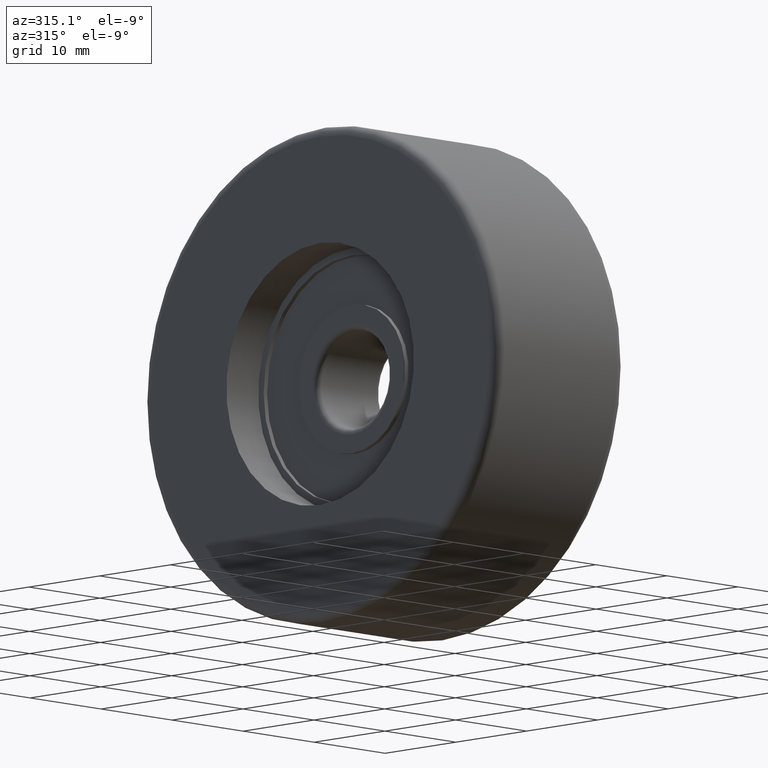
[diagram: clean part render]
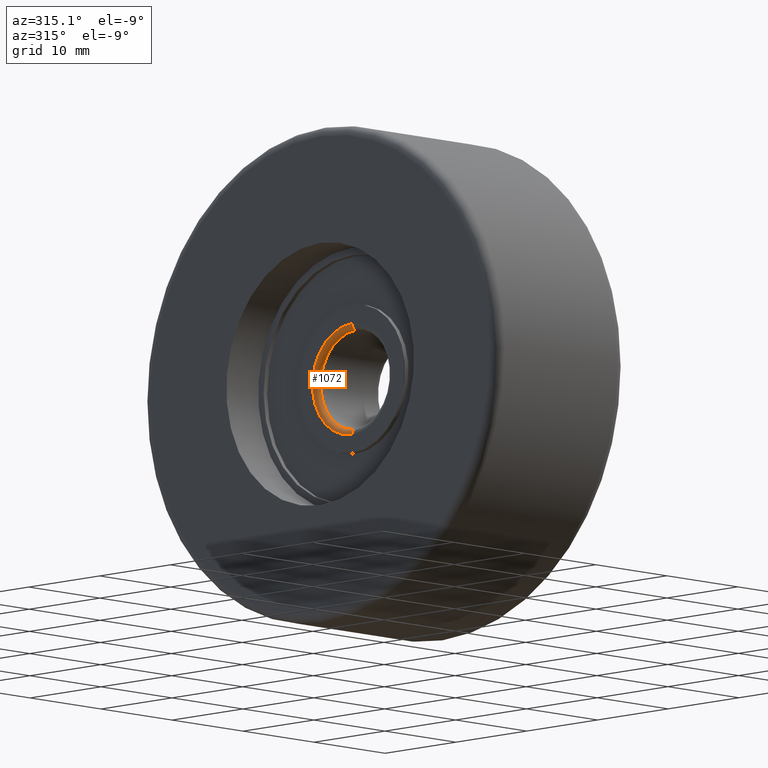
[diagram: same view with one face highlighted and labeled with its STEP entity id]
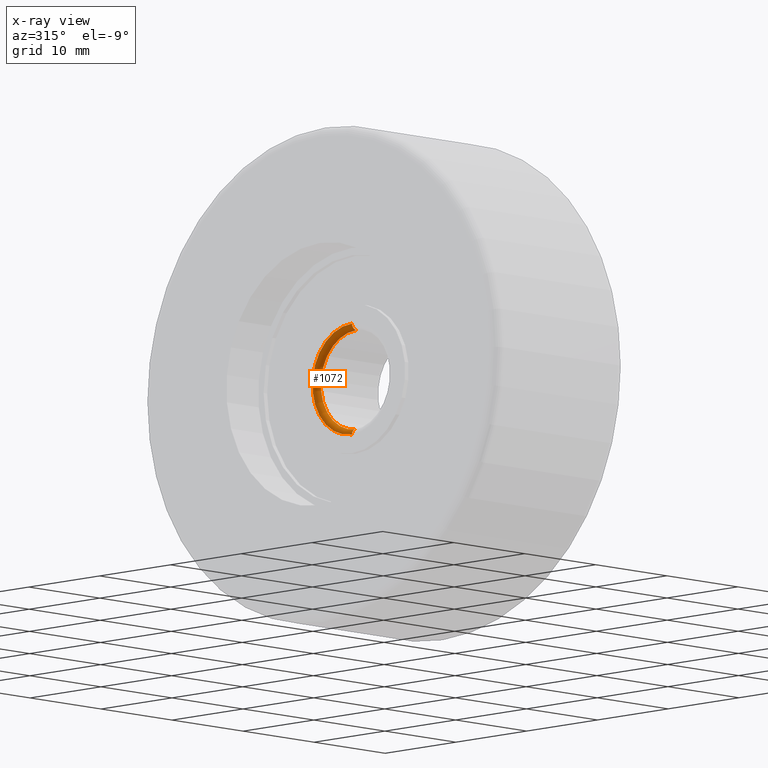
[diagram: x-ray of the same camera — body ghosted, the highlighted face saturated]
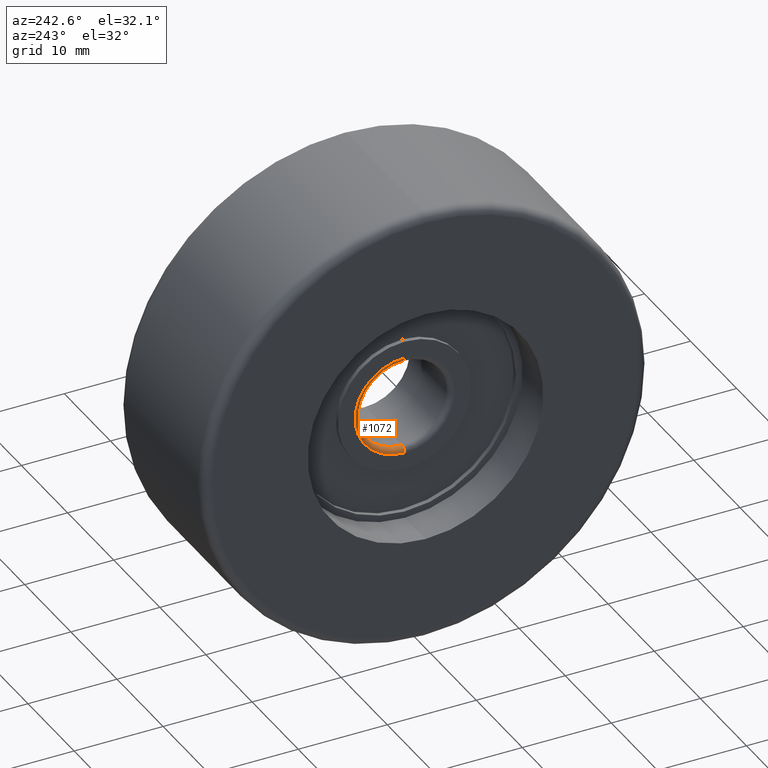
[diagram: same view with one face highlighted and labeled with its STEP entity id]
A machine part, auxiliary view. The second image highlights one B-rep face of the part: STEP entity #1072.
The next image is the same camera in x-ray: the body ghosted, the highlighted face saturated — about 0% of this face is hidden behind the body in this view.
A second angle (auxiliary view) of the same face is appended — the face is thin or edge-on in the first view.
In plain terms, the highlighted toroidal blend (fillet) surface has major radius 5.6 mm and minor (blend) radius 0.6 mm.
Its self-contained STEP definition (entity closure, byte-faithful):
#21 = CIRCLE ( 'NONE', #906, 0.5999999999999998668 ) ;
#57 = DIRECTION ( 'NONE',  ( 0.0000000000000000000, 0.0000000000000000000, 1.000000000000000000 ) ) ;
#105 = DIRECTION ( 'NONE',  ( -1.000000000000000000, -0.0000000000000000000, -0.0000000000000000000 ) ) ;
#111 = CIRCLE ( 'NONE', #1210, 5.000000000000000888 ) ;
#216 = VERTEX_POINT ( 'NONE', #1319 ) ;
#259 = AXIS2_PLACEMENT_3D ( 'NONE', #1457, #105, #1338 ) ;
#281 = VERTEX_POINT ( 'NONE', #915 ) ;
#288 = CARTESIAN_POINT ( 'NONE',  ( -4.499999999999997335, 0.0000000000000000000, 5.600000000000000533 ) ) ;
#315 = EDGE_CURVE ( 'NONE', #216, #427, #21, .T. ) ;
#364 = CARTESIAN_POINT ( 'NONE',  ( -3.899999999999997247, 6.858022075225178552E-16, -5.600000000000000533 ) ) ;
#427 = VERTEX_POINT ( 'NONE', #821 ) ;
#441 = DIRECTION ( 'NONE',  ( -1.000000000000000000, -0.0000000000000000000, -0.0000000000000000000 ) ) ;
#473 = DIRECTION ( 'NONE',  ( -0.0000000000000000000, 1.000000000000000000, 1.224646799147353207E-16 ) ) ;
#503 = CIRCLE ( 'NONE', #259, 5.600000000000000533 ) ;
#525 = CARTESIAN_POINT ( 'NONE',  ( -3.899999999999997247, 0.0000000000000000000, 0.0000000000000000000 ) ) ;
#741 = TOROIDAL_SURFACE ( 'NONE', #1450, 5.600000000000000533, 0.5999999999999998668 ) ;
#791 = ORIENTED_EDGE ( 'NONE', *, *, #1176, .F. ) ;
#821 = CARTESIAN_POINT ( 'NONE',  ( -3.899999999999997247, 6.123233995736767268E-16, -5.000000000000000888 ) ) ;
#829 = CIRCLE ( 'NONE', #1181, 0.5999999999999998668 ) ;
#895 = EDGE_CURVE ( 'NONE', #1117, #281, #829, .T. ) ;
#898 = EDGE_LOOP ( 'NONE', ( #1138, #1099, #791, #1429 ) ) ;
#906 = AXIS2_PLACEMENT_3D ( 'NONE', #364, #473, #1247 ) ;
#915 = CARTESIAN_POINT ( 'NONE',  ( -3.899999999999997247, 0.0000000000000000000, 5.000000000000000888 ) ) ;
#1020 = DIRECTION ( 'NONE',  ( 0.0000000000000000000, 0.0000000000000000000, -1.000000000000000000 ) ) ;
#1033 = DIRECTION ( 'NONE',  ( 0.0000000000000000000, -1.000000000000000000, 0.0000000000000000000 ) ) ;
#1072 = ADVANCED_FACE ( 'NONE', ( #1208 ), #741, .T. ) ;
#1099 = ORIENTED_EDGE ( 'NONE', *, *, #315, .T. ) ;
#1100 = CARTESIAN_POINT ( 'NONE',  ( -3.899999999999997247, 0.0000000000000000000, 0.0000000000000000000 ) ) ;
#1117 = VERTEX_POINT ( 'NONE', #288 ) ;
#1138 = ORIENTED_EDGE ( 'NONE', *, *, #1340, .T. ) ;
#1176 = EDGE_CURVE ( 'NONE', #281, #427, #111, .T. ) ;
#1181 = AXIS2_PLACEMENT_3D ( 'NONE', #1250, #1033, #1020 ) ;
#1208 = FACE_OUTER_BOUND ( 'NONE', #898, .T. ) ;
#1210 = AXIS2_PLACEMENT_3D ( 'NONE', #1100, #441, #1212 ) ;
#1212 = DIRECTION ( 'NONE',  ( 0.0000000000000000000, 0.0000000000000000000, 1.000000000000000000 ) ) ;
#1247 = DIRECTION ( 'NONE',  ( 0.0000000000000000000, -1.224646799147353207E-16, 1.000000000000000000 ) ) ;
#1250 = CARTESIAN_POINT ( 'NONE',  ( -3.899999999999997247, 0.0000000000000000000, 5.600000000000000533 ) ) ;
#1319 = CARTESIAN_POINT ( 'NONE',  ( -4.499999999999997335, 6.858022075225177566E-16, -5.600000000000000533 ) ) ;
#1338 = DIRECTION ( 'NONE',  ( 0.0000000000000000000, 0.0000000000000000000, 1.000000000000000000 ) ) ;
#1340 = EDGE_CURVE ( 'NONE', #1117, #216, #503, .T. ) ;
#1427 = DIRECTION ( 'NONE',  ( -1.000000000000000000, -0.0000000000000000000, -0.0000000000000000000 ) ) ;
#1429 = ORIENTED_EDGE ( 'NONE', *, *, #895, .F. ) ;
#1450 = AXIS2_PLACEMENT_3D ( 'NONE', #525, #1427, #57 ) ;
#1457 = CARTESIAN_POINT ( 'NONE',  ( -4.499999999999997335, 0.0000000000000000000, 0.0000000000000000000 ) ) ;